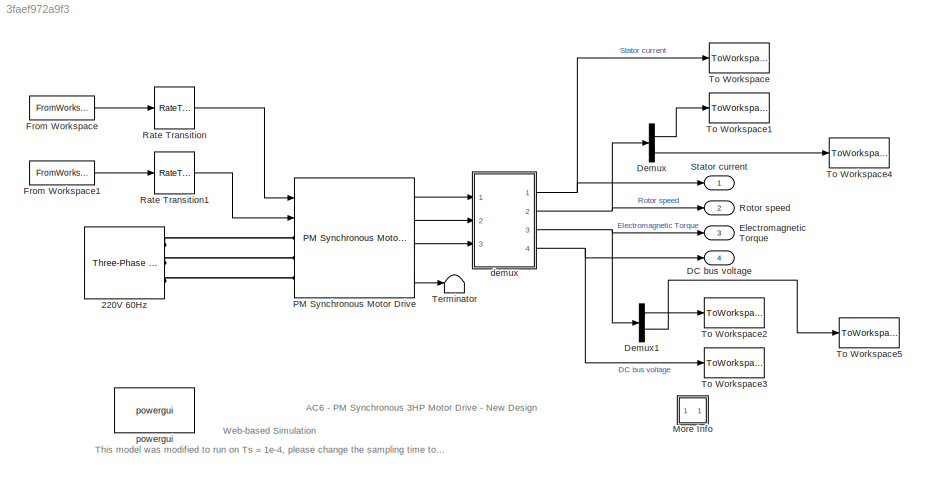
MODEL slx_3faef972a9f3
KIND model
CONFIG AbsTol = auto
CONFIG FixedStep = auto
CONFIG MaxStep = auto
CONFIG MinStep = auto
CONFIG PreLoadFcn = Ts=2e-6;
CONFIG RelTol = 1e-3
CONFIG SampleTimeConstraint = Unconstrained
CONFIG Solver = FixedStepDiscrete
CONFIG SolverMode = Auto
CONFIG SolverName = FixedStepDiscrete
CONFIG StartTime = 0.0
CONFIG StopTime = 2
BLOCK [Reference] 220V 60Hz  REF=powerlib/Electrical
Sources/Three-Phase Source
  Ports = [0, 0, 0, 0, 0, 0, 3]
  SourceBlock = powerlib/Electrical\nSources/Three-Phase Source
  SourceType = Three-Phase Source
BLOCK [Outport] DC bus voltage
  IconDisplay = Port number
  Port = 4
BLOCK [Demux] Demux
  DisplayOption = bar
  Outputs = 2
  Ports = [1, 2]
BLOCK [Demux] Demux1
  DisplayOption = bar
  Outputs = 2
  Ports = [1, 2]
BLOCK [Outport] Electromagnetic Torque
  IconDisplay = Port number
  Port = 3
BLOCK [FromWorkspace] From Workspace
  VariableName = Speed
  ZeroCross = on
BLOCK [FromWorkspace] From Workspace1
  VariableName = Torque
  ZeroCross = on
BLOCK [SubSystem] More Info
  OpenFcn = showdemo(bdroot(gcb))
  Ports = []
  RequestExecContextInheritance = off
  Variant = off
BLOCK [Reference] PM Synchronous Motor Drive  REF=electricdrivelib/AC drives/PM Synchronous Motor Drive
  Ports = [2, 4, 0, 0, 0, 3]
  SourceBlock = electricdrivelib/AC drives/PM Synchronous Motor Drive
  SourceType = PM Synchronous Motor Drive
  UserDataPersistent = on
BLOCK [RateTransition] Rate Transition
  OutPortSampleTime = Ts
BLOCK [RateTransition] Rate Transition1
  OutPortSampleTime = Ts
BLOCK [Outport] Rotor speed
  IconDisplay = Port number
  Port = 2
BLOCK [Outport] Stator current
  IconDisplay = Port number
BLOCK [Terminator] Terminator
BLOCK [ToWorkspace] To Workspace
  FixptAsFi = on
  MaxDataPoints = inf
  Ports = [1]
  SampleTime = -1
  Save2DSignal = 3-D array (concatenate along third dimension)
  SaveFormat = Timeseries
  VariableName = current
BLOCK [ToWorkspace] To Workspace1
  FixptAsFi = on
  MaxDataPoints = inf
  Ports = [1]
  SampleTime = -1
  Save2DSignal = 3-D array (concatenate along third dimension)
  SaveFormat = Timeseries
  VariableName = speed
BLOCK [ToWorkspace] To Workspace2
  FixptAsFi = on
  MaxDataPoints = inf
  Ports = [1]
  SampleTime = -1
  Save2DSignal = 3-D array (concatenate along third dimension)
  SaveFormat = Timeseries
  VariableName = torque
BLOCK [ToWorkspace] To Workspace3
  FixptAsFi = on
  MaxDataPoints = inf
  Ports = [1]
  SampleTime = -1
  Save2DSignal = 3-D array (concatenate along third dimension)
  SaveFormat = Timeseries
  VariableName = voltage
BLOCK [ToWorkspace] To Workspace4
  FixptAsFi = on
  MaxDataPoints = inf
  Ports = [1]
  SampleTime = -1
  Save2DSignal = 3-D array (concatenate along third dimension)
  SaveFormat = Timeseries
  VariableName = speed_ref
BLOCK [ToWorkspace] To Workspace5
  FixptAsFi = on
  MaxDataPoints = inf
  Ports = [1]
  SampleTime = -1
  Save2DSignal = 3-D array (concatenate along third dimension)
  SaveFormat = Timeseries
  VariableName = torque_ref
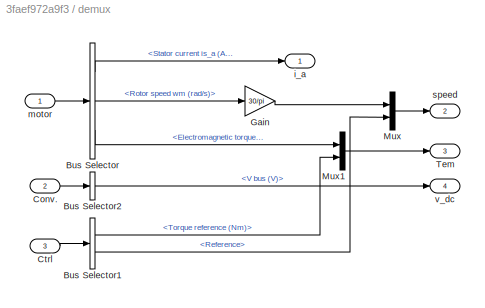
BLOCK [SubSystem] demux
  Ports = [3, 4]
  RequestExecContextInheritance = off
  Variant = off
BLOCK [BusSelector] demux/Bus Selector
  OutputSignals = Stator current is_a (A),Rotor speed wm (rad/s),Electromagnetic torque Te (N*m)
  Ports = [1, 3]
BLOCK [BusSelector] demux/Bus Selector1
  OutputSignals = Torque reference (Nm),Reference
  Ports = [1, 2]
BLOCK [BusSelector] demux/Bus Selector2
  OutputSignals = V bus (V)
  Ports = [1, 1]
BLOCK [Inport] demux/Conv.
  IconDisplay = Port number
  Port = 2
BLOCK [Inport] demux/Ctrl
  IconDisplay = Port number
  Port = 3
BLOCK [Gain] demux/Gain
  Gain = 30/pi
BLOCK [Mux] demux/Mux
  DisplayOption = bar
  Inputs = 2
  Ports = [2, 1]
BLOCK [Mux] demux/Mux1
  DisplayOption = bar
  Inputs = 2
  Ports = [2, 1]
BLOCK [Outport] demux/Tem
  IconDisplay = Port number
  Port = 3
BLOCK [Outport] demux/i_a
  IconDisplay = Port number
BLOCK [Inport] demux/motor
  IconDisplay = Port number
BLOCK [Outport] demux/speed
  IconDisplay = Port number
  Port = 2
BLOCK [Outport] demux/v_dc
  IconDisplay = Port number
  Port = 4
BLOCK [Reference] powergui  REF=powerlib/powergui
  Ports = []
  Priority = 2
  SourceBlock = powerlib/powergui
  SourceType = PSB option menu block
  UserDataPersistent = on
ANNOTATION (root): AC6 - PM Synchronous 3HP Motor Drive - New Design
ANNOTATION (root): Web-based Simulation
ANNOTATION (root): This model was modified to run on Ts = 1e-4, please change the sampling time to 100us before use
LINE Demux1:1 -> To Workspace2:1
LINE Demux1:2 -> To Workspace5:1
LINE Demux:1 -> To Workspace1:1
LINE Demux:2 -> To Workspace4:1
LINE From Workspace1:1 -> Rate Transition1:1
LINE From Workspace:1 -> Rate Transition:1
LINE PM Synchronous Motor Drive:1 -> demux:1
LINE PM Synchronous Motor Drive:2 -> demux:2
LINE PM Synchronous Motor Drive:3 -> demux:3
LINE PM Synchronous Motor Drive:4 -> Terminator:1
LINE Rate Transition1:1 -> PM Synchronous Motor Drive:2
LINE Rate Transition:1 -> PM Synchronous Motor Drive:1
LINE demux/Bus Selector1:1 -> demux/Mux1:2
LINE demux/Bus Selector1:2 -> demux/Mux:2
LINE demux/Bus Selector2:1 -> demux/v_dc:1
LINE demux/Bus Selector:1 -> demux/i_a:1
LINE demux/Bus Selector:2 -> demux/Gain:1
LINE demux/Bus Selector:3 -> demux/Mux1:1
LINE demux/Conv.:1 -> demux/Bus Selector2:1
LINE demux/Ctrl:1 -> demux/Bus Selector1:1
LINE demux/Gain:1 -> demux/Mux:1
LINE demux/Mux1:1 -> demux/Tem:1
LINE demux/Mux:1 -> demux/speed:1
LINE demux/motor:1 -> demux/Bus Selector:1
NET demux:1 -> Stator current:1, To Workspace:1
NET demux:2 -> Demux:1, Rotor speed:1
NET demux:3 -> Demux1:1, Electromagnetic Torque:1
NET demux:4 -> DC bus voltage:1, To Workspace3:1
PLINE 220V 60Hz:RConn1 -- PM Synchronous Motor Drive:LConn1
PLINE 220V 60Hz:RConn2 -- PM Synchronous Motor Drive:LConn2
PLINE 220V 60Hz:RConn3 -- PM Synchronous Motor Drive:LConn3
note: NET lines group one-source signal fan-out (src -> all destinations, sorted); 1:1 wires keep LINE
